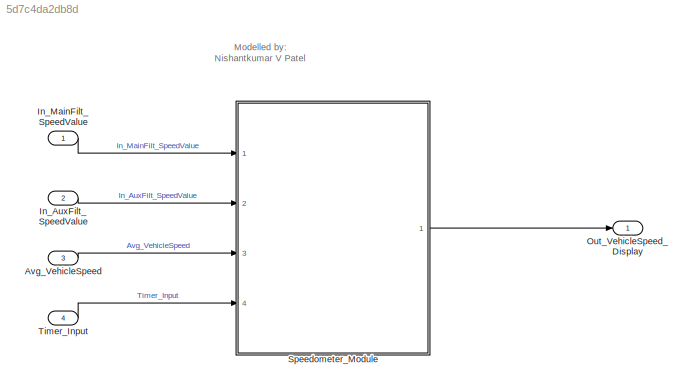
MODEL slx_5d7c4da2db8d
KIND model
CONFIG AbsTol = auto
CONFIG EnableMultiTasking = off
CONFIG FixedStep = 0.01
CONFIG MaxStep = auto
CONFIG MinStep = auto
CONFIG RelTol = 1e-3
CONFIG SampleTimeConstraint = Unconstrained
CONFIG SolverName = FixedStepDiscrete
CONFIG StartTime = 0.0
CONFIG StopTime = 1.04
BLOCK [Inport] Avg_VehicleSpeed
  OutDataTypeStr = fixdt(0,16,0.01,0)
  OutMax = 280
  OutMin = 0
  Port = 3
  PortDimensions = 1
  SampleTime = 0.01
BLOCK [Inport] In_AuxFilt_SpeedValue
  OutDataTypeStr = fixdt(0,8,1,0)
  OutMax = 3
  OutMin = 1
  Port = 2
  PortDimensions = 1
  SampleTime = 0.01
BLOCK [Inport] In_MainFilt_SpeedValue
  OutDataTypeStr = fixdt(0,8,1,0)
  OutMax = 3
  OutMin = 1
  PortDimensions = 1
  SampleTime = 0.01
BLOCK [Outport] Out_VehicleSpeed_Display
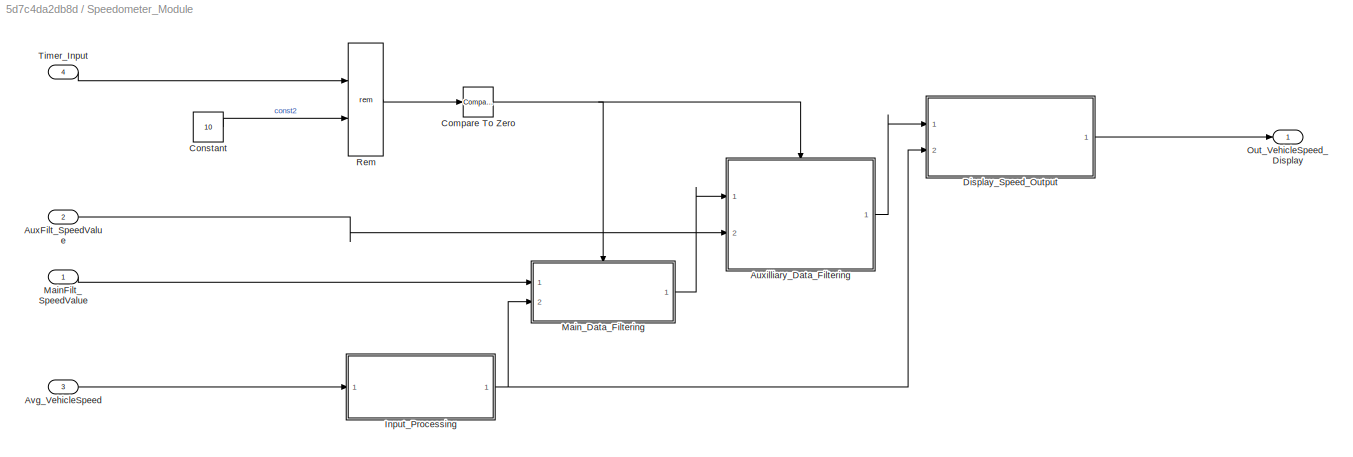
BLOCK [SubSystem] Speedometer_Module
  Ports = [4, 1]
  RequestExecContextInheritance = off
  TreatAsAtomicUnit = on
BLOCK [Inport] Speedometer_Module/AuxFilt_SpeedValue
  OutDataTypeStr = fixdt(0,8,1,0)
  OutMax = 3
  OutMin = 1
  Port = 2
  PortDimensions = 1
  SampleTime = 0.01
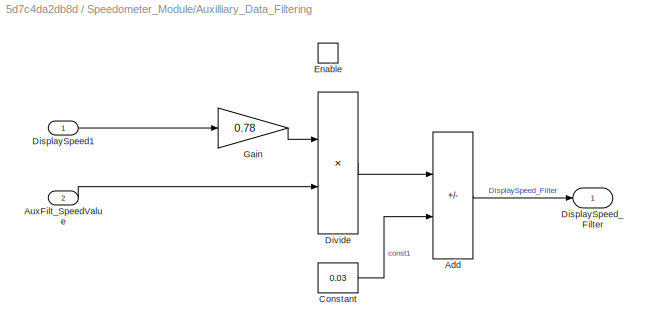
BLOCK [SubSystem] Speedometer_Module/Auxilliary_Data_Filtering
  Ports = [2, 1, 1]
  RequestExecContextInheritance = off
BLOCK [Sum] Speedometer_Module/Auxilliary_Data_Filtering/Add
  AccumDataTypeStr = fixdt(0,16,0.01,0)
  IconShape = rectangular
  Inputs = +-
  OutDataTypeStr = fixdt(0,16,0.01,0)
  Ports = [2, 1]
BLOCK [Inport] Speedometer_Module/Auxilliary_Data_Filtering/AuxFilt_SpeedValue
  Port = 2
BLOCK [Constant] Speedometer_Module/Auxilliary_Data_Filtering/Constant
  OutDataTypeStr = fixdt(0,16,0.01,0)
  OutMax = 0.03
  OutMin = 0.03
  Value = 0.03
BLOCK [Inport] Speedometer_Module/Auxilliary_Data_Filtering/DisplaySpeed1
  OutDataTypeStr = fixdt(0,16,0.01,0)
  PortDimensions = 1
  SampleTime = 0.01
BLOCK [Outport] Speedometer_Module/Auxilliary_Data_Filtering/DisplaySpeed_Filter
  OutDataTypeStr = fixdt(0,16,0.01,0)
  PortDimensions = 1
  SampleTime = 0.01
BLOCK [Product] Speedometer_Module/Auxilliary_Data_Filtering/Divide
  Inputs = */
  OutDataTypeStr = fixdt(0,16,0.01,0)
  Ports = [2, 1]
BLOCK [EnablePort] Speedometer_Module/Auxilliary_Data_Filtering/Enable
  Ports = []
BLOCK [Gain] Speedometer_Module/Auxilliary_Data_Filtering/Gain
  Gain = 0.78
  OutDataTypeStr = fixdt(0,16,0.01,0)
  ParamDataTypeStr = fixdt(0,16,0.01,0)
  ParamMax = 0.78
  ParamMin = 0.78
BLOCK [Inport] Speedometer_Module/Avg_VehicleSpeed
  OutDataTypeStr = fixdt(0,16,0.01,0)
  OutMax = 280
  OutMin = 0
  Port = 3
  PortDimensions = 1
  SampleTime = 0.01
BLOCK [Reference] Speedometer_Module/Compare To Zero  REF=simulink/Logic and Bit
Operations/Compare
To Zero
  Ports = [1, 1]
  SourceBlock = simulink/Logic and Bit\nOperations/Compare\nTo Zero
  SourceProductBaseCode = SL
  SourceType = Compare To Zero
BLOCK [Constant] Speedometer_Module/Constant
  OutDataTypeStr = fixdt(0,16,0)
  Value = 10
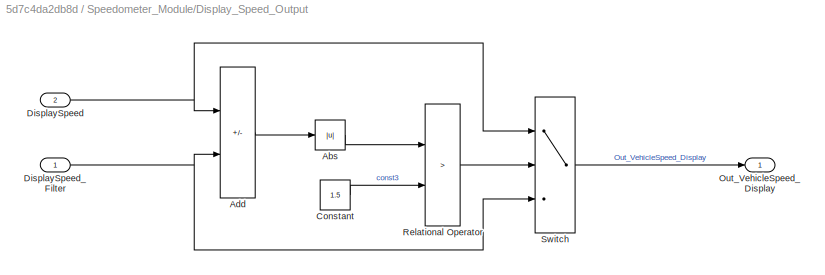
BLOCK [SubSystem] Speedometer_Module/Display_Speed_Output
  Ports = [2, 1]
  RequestExecContextInheritance = off
BLOCK [Abs] Speedometer_Module/Display_Speed_Output/Abs
  OutDataTypeStr = fixdt(0,16,0.01,0)
  SaturateOnIntegerOverflow = off
BLOCK [Sum] Speedometer_Module/Display_Speed_Output/Add
  AccumDataTypeStr = fixdt(1,16,0.01,0)
  IconShape = rectangular
  Inputs = -+
  OutDataTypeStr = fixdt(1,16,0.01,0)
  Ports = [2, 1]
  SaturateOnIntegerOverflow = on
BLOCK [Constant] Speedometer_Module/Display_Speed_Output/Constant
  OutDataTypeStr = fixdt(0,16,0.01,0)
  OutMax = 1.5
  OutMin = 1.5
  Value = 1.5
BLOCK [Inport] Speedometer_Module/Display_Speed_Output/DisplaySpeed
  OutDataTypeStr = fixdt(0,16,0.01,0)
  Port = 2
  PortDimensions = 1
  SampleTime = 0.01
BLOCK [Inport] Speedometer_Module/Display_Speed_Output/DisplaySpeed_Filter
  OutDataTypeStr = fixdt(0,16,0.01,0)
  PortDimensions = 1
  SampleTime = 0.01
BLOCK [Outport] Speedometer_Module/Display_Speed_Output/Out_VehicleSpeed_Display
BLOCK [RelationalOperator] Speedometer_Module/Display_Speed_Output/Relational Operator
  InputSameDT = off
  Operator = >
  OutDataTypeStr = boolean
  Ports = [2, 1]
  RndMeth = Simplest
BLOCK [Switch] Speedometer_Module/Display_Speed_Output/Switch
  Criteria = u2 ~= 0
  InputSameDT = off
  OutDataTypeStr = fixdt(0,16,0.01,0)
  SaturateOnIntegerOverflow = off
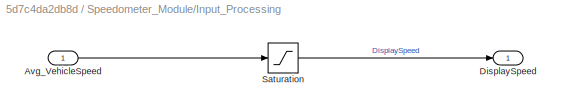
BLOCK [SubSystem] Speedometer_Module/Input_Processing
  Ports = [1, 1]
  RequestExecContextInheritance = off
BLOCK [Inport] Speedometer_Module/Input_Processing/Avg_VehicleSpeed
  OutDataTypeStr = fixdt(0,16,0.01,0)
  OutMax = 280
  OutMin = 0
  PortDimensions = 1
  SampleTime = 0.01
BLOCK [Outport] Speedometer_Module/Input_Processing/DisplaySpeed
  OutDataTypeStr = fixdt(0,16,0.01,0)
  PortDimensions = 1
  SampleTime = 0.01
BLOCK [Saturate] Speedometer_Module/Input_Processing/Saturation
  LowerLimit = 2
  OutDataTypeStr = fixdt(0,16,0.01,0)
  UpperLimit = 250
BLOCK [Inport] Speedometer_Module/MainFilt_SpeedValue
  OutDataTypeStr = fixdt(0,8,1,0)
  OutMax = 3
  OutMin = 1
  PortDimensions = 1
  SampleTime = 0.01
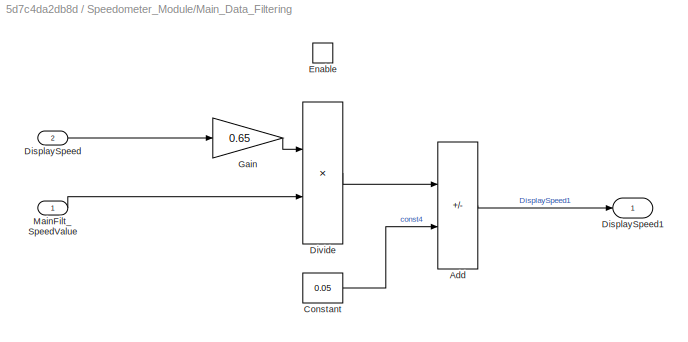
BLOCK [SubSystem] Speedometer_Module/Main_Data_Filtering
  Ports = [2, 1, 1]
  RequestExecContextInheritance = off
BLOCK [Sum] Speedometer_Module/Main_Data_Filtering/Add
  AccumDataTypeStr = fixdt(0,16,0.01,0)
  IconShape = rectangular
  Inputs = +-
  OutDataTypeStr = fixdt(0,16,0.01,0)
  Ports = [2, 1]
BLOCK [Constant] Speedometer_Module/Main_Data_Filtering/Constant
  OutDataTypeStr = fixdt(0,16,0.01,0)
  OutMax = 0.05
  OutMin = 0.05
  Value = 0.05
BLOCK [Inport] Speedometer_Module/Main_Data_Filtering/DisplaySpeed
  OutDataTypeStr = fixdt(0,16,0.01,0)
  Port = 2
  PortDimensions = 1
  SampleTime = 0.01
BLOCK [Outport] Speedometer_Module/Main_Data_Filtering/DisplaySpeed1
  OutDataTypeStr = fixdt(0,16,0.01,0)
  PortDimensions = 1
  SampleTime = 0.01
BLOCK [Product] Speedometer_Module/Main_Data_Filtering/Divide
  Inputs = */
  OutDataTypeStr = fixdt(0,16,0.01,0)
  Ports = [2, 1]
BLOCK [EnablePort] Speedometer_Module/Main_Data_Filtering/Enable
  Ports = []
BLOCK [Gain] Speedometer_Module/Main_Data_Filtering/Gain
  Gain = 0.65
  OutDataTypeStr = fixdt(0,16,0.01,0)
  ParamDataTypeStr = fixdt(0,16,0.01,0)
  ParamMax = 0.65
  ParamMin = 0.65
BLOCK [Inport] Speedometer_Module/Main_Data_Filtering/MainFilt_SpeedValue
  OutDataTypeStr = fixdt(0,8,1,0)
  OutMax = 3
  OutMin = 1
  PortDimensions = 1
  SampleTime = 0.01
BLOCK [Outport] Speedometer_Module/Out_VehicleSpeed_Display
BLOCK [Math] Speedometer_Module/Rem
  Operator = rem
  Ports = [2, 1]
BLOCK [Inport] Speedometer_Module/Timer_Input
  OutDataTypeStr = fixdt(0,16,0)
  Port = 4
  PortDimensions = 1
  SampleTime = 0.01
BLOCK [Inport] Timer_Input
  OutDataTypeStr = fixdt(0,16,0)
  Port = 4
  PortDimensions = 1
  SampleTime = 0.01
ANNOTATION (root): Modelled by: Nishantkumar V Patel
LINE Avg_VehicleSpeed:1 -> Speedometer_Module:3
LINE In_AuxFilt_SpeedValue:1 -> Speedometer_Module:2
LINE In_MainFilt_SpeedValue:1 -> Speedometer_Module:1
LINE Speedometer_Module/AuxFilt_SpeedValue:1 -> Speedometer_Module/Auxilliary_Data_Filtering:2
LINE Speedometer_Module/Auxilliary_Data_Filtering/Add:1 -> Speedometer_Module/Auxilliary_Data_Filtering/DisplaySpeed_Filter:1
LINE Speedometer_Module/Auxilliary_Data_Filtering/AuxFilt_SpeedValue:1 -> Speedometer_Module/Auxilliary_Data_Filtering/Divide:2
LINE Speedometer_Module/Auxilliary_Data_Filtering/Constant:1 -> Speedometer_Module/Auxilliary_Data_Filtering/Add:2
LINE Speedometer_Module/Auxilliary_Data_Filtering/DisplaySpeed1:1 -> Speedometer_Module/Auxilliary_Data_Filtering/Gain:1
LINE Speedometer_Module/Auxilliary_Data_Filtering/Divide:1 -> Speedometer_Module/Auxilliary_Data_Filtering/Add:1
LINE Speedometer_Module/Auxilliary_Data_Filtering/Gain:1 -> Speedometer_Module/Auxilliary_Data_Filtering/Divide:1
LINE Speedometer_Module/Auxilliary_Data_Filtering:1 -> Speedometer_Module/Display_Speed_Output:1
LINE Speedometer_Module/Avg_VehicleSpeed:1 -> Speedometer_Module/Input_Processing:1
NET Speedometer_Module/Compare To Zero:1 -> Speedometer_Module/Auxilliary_Data_Filtering:enable, Speedometer_Module/Main_Data_Filtering:enable
LINE Speedometer_Module/Constant:1 -> Speedometer_Module/Rem:2
LINE Speedometer_Module/Display_Speed_Output/Abs:1 -> Speedometer_Module/Display_Speed_Output/Relational Operator:1
LINE Speedometer_Module/Display_Speed_Output/Add:1 -> Speedometer_Module/Display_Speed_Output/Abs:1
LINE Speedometer_Module/Display_Speed_Output/Constant:1 -> Speedometer_Module/Display_Speed_Output/Relational Operator:2
NET Speedometer_Module/Display_Speed_Output/DisplaySpeed:1 -> Speedometer_Module/Display_Speed_Output/Add:1, Speedometer_Module/Display_Speed_Output/Switch:1
NET Speedometer_Module/Display_Speed_Output/DisplaySpeed_Filter:1 -> Speedometer_Module/Display_Speed_Output/Add:2, Speedometer_Module/Display_Speed_Output/Switch:3
LINE Speedometer_Module/Display_Speed_Output/Relational Operator:1 -> Speedometer_Module/Display_Speed_Output/Switch:2
LINE Speedometer_Module/Display_Speed_Output/Switch:1 -> Speedometer_Module/Display_Speed_Output/Out_VehicleSpeed_Display:1
LINE Speedometer_Module/Display_Speed_Output:1 -> Speedometer_Module/Out_VehicleSpeed_Display:1
LINE Speedometer_Module/Input_Processing/Avg_VehicleSpeed:1 -> Speedometer_Module/Input_Processing/Saturation:1
LINE Speedometer_Module/Input_Processing/Saturation:1 -> Speedometer_Module/Input_Processing/DisplaySpeed:1
NET Speedometer_Module/Input_Processing:1 -> Speedometer_Module/Display_Speed_Output:2, Speedometer_Module/Main_Data_Filtering:2
LINE Speedometer_Module/MainFilt_SpeedValue:1 -> Speedometer_Module/Main_Data_Filtering:1
LINE Speedometer_Module/Main_Data_Filtering/Add:1 -> Speedometer_Module/Main_Data_Filtering/DisplaySpeed1:1
LINE Speedometer_Module/Main_Data_Filtering/Constant:1 -> Speedometer_Module/Main_Data_Filtering/Add:2
LINE Speedometer_Module/Main_Data_Filtering/DisplaySpeed:1 -> Speedometer_Module/Main_Data_Filtering/Gain:1
LINE Speedometer_Module/Main_Data_Filtering/Divide:1 -> Speedometer_Module/Main_Data_Filtering/Add:1
LINE Speedometer_Module/Main_Data_Filtering/Gain:1 -> Speedometer_Module/Main_Data_Filtering/Divide:1
LINE Speedometer_Module/Main_Data_Filtering/MainFilt_SpeedValue:1 -> Speedometer_Module/Main_Data_Filtering/Divide:2
LINE Speedometer_Module/Main_Data_Filtering:1 -> Speedometer_Module/Auxilliary_Data_Filtering:1
LINE Speedometer_Module/Rem:1 -> Speedometer_Module/Compare To Zero:1
LINE Speedometer_Module/Timer_Input:1 -> Speedometer_Module/Rem:1
LINE Speedometer_Module:1 -> Out_VehicleSpeed_Display:1
LINE Timer_Input:1 -> Speedometer_Module:4
note: NET lines group one-source signal fan-out (src -> all destinations, sorted); 1:1 wires keep LINE
